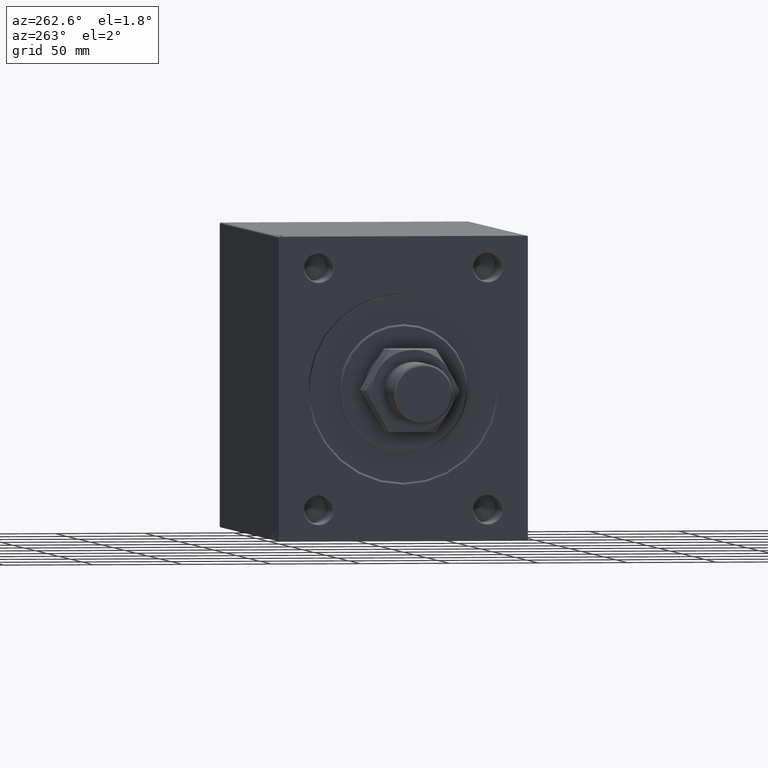
[diagram: clean part render]
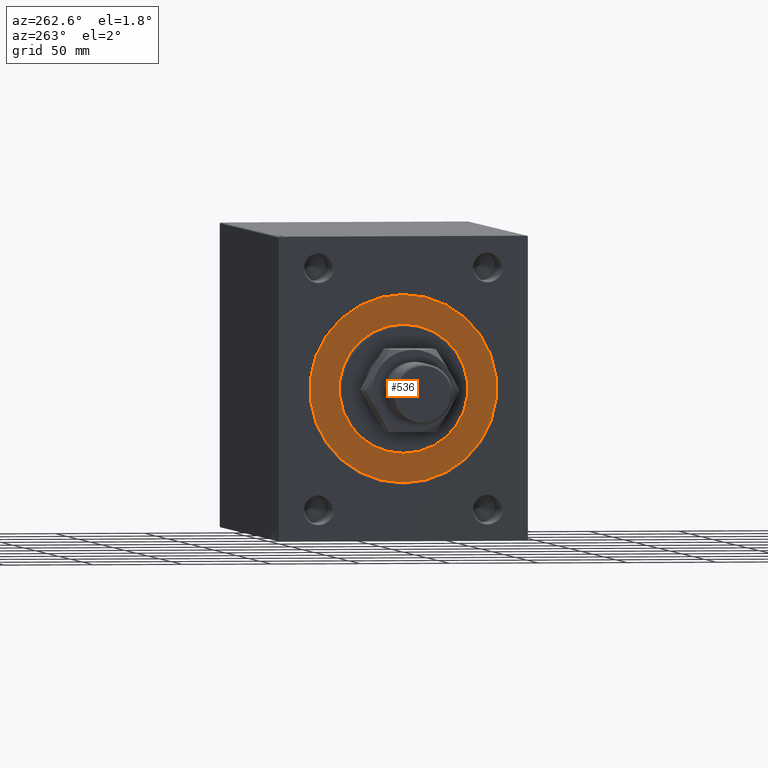
[diagram: same view with one face highlighted and labeled with its STEP entity id]
A machine part, auxiliary view. The second image highlights one B-rep face of the part: STEP entity #536.
In plain terms, the highlighted planar face has unit normal (1, -0, -0).
Its self-contained STEP definition (entity closure, byte-faithful):
#374 = FACE_OUTER_BOUND ( 'NONE', #35372, .T. ) ;
#536 = ADVANCED_FACE ( 'NONE', ( #22154, #374 ), #7791, .F. ) ;
#956 = VERTEX_POINT ( 'NONE', #14636 ) ;
#1495 = CIRCLE ( 'NONE', #5954, 36.00000000000000000 ) ;
#5841 = ORIENTED_EDGE ( 'NONE', *, *, #35809, .F. ) ;
#5954 = AXIS2_PLACEMENT_3D ( 'NONE', #22723, #36853, #37530 ) ;
#6732 = CARTESIAN_POINT ( 'NONE',  ( 0.000000000000000000, 4.408728476930470856E-15, -36.00000000000000000 ) ) ;
#7012 = CARTESIAN_POINT ( 'NONE',  ( 0.000000000000000000, 0.000000000000000000, 0.000000000000000000 ) ) ;
#7201 = DIRECTION ( 'NONE',  ( 0.000000000000000000, 0.000000000000000000, 1.000000000000000000 ) ) ;
#7791 = PLANE ( 'NONE',  #8914 ) ;
#8914 = AXIS2_PLACEMENT_3D ( 'NONE', #18672, #29345, #39082 ) ;
#11764 = EDGE_LOOP ( 'NONE', ( #5841, #12430 ) ) ;
#12430 = ORIENTED_EDGE ( 'NONE', *, *, #21933, .F. ) ;
#13802 = CIRCLE ( 'NONE', #26421, 52.49999999999999289 ) ;
#14243 = EDGE_CURVE ( 'NONE', #956, #25986, #43966, .T. ) ;
#14636 = CARTESIAN_POINT ( 'NONE',  ( 0.000000000000000000, 0.000000000000000000, -52.49999999999999289 ) ) ;
#14978 = VERTEX_POINT ( 'NONE', #31699 ) ;
#15309 = CIRCLE ( 'NONE', #21223, 36.00000000000000000 ) ;
#17094 = CARTESIAN_POINT ( 'NONE',  ( 0.000000000000000000, 0.000000000000000000, 0.000000000000000000 ) ) ;
#18672 = CARTESIAN_POINT ( 'NONE',  ( 0.000000000000000000, 0.000000000000000000, 0.000000000000000000 ) ) ;
#21223 = AXIS2_PLACEMENT_3D ( 'NONE', #17094, #31242, #45395 ) ;
#21571 = EDGE_CURVE ( 'NONE', #25986, #956, #13802, .T. ) ;
#21933 = EDGE_CURVE ( 'NONE', #32752, #14978, #15309, .T. ) ;
#22154 = FACE_BOUND ( 'NONE', #11764, .T. ) ;
#22723 = CARTESIAN_POINT ( 'NONE',  ( 0.000000000000000000, 0.000000000000000000, 0.000000000000000000 ) ) ;
#24233 = CARTESIAN_POINT ( 'NONE',  ( 0.000000000000000000, 6.429395695523603167E-15, 52.49999999999999289 ) ) ;
#25986 = VERTEX_POINT ( 'NONE', #24233 ) ;
#26421 = AXIS2_PLACEMENT_3D ( 'NONE', #28068, #42880, #7201 ) ;
#27657 = DIRECTION ( 'NONE',  ( -1.000000000000000000, 0.000000000000000000, 0.000000000000000000 ) ) ;
#28068 = CARTESIAN_POINT ( 'NONE',  ( 0.000000000000000000, 0.000000000000000000, 0.000000000000000000 ) ) ;
#29345 = DIRECTION ( 'NONE',  ( -1.000000000000000000, 0.000000000000000000, 0.000000000000000000 ) ) ;
#31242 = DIRECTION ( 'NONE',  ( 1.000000000000000000, -0.000000000000000000, 0.000000000000000000 ) ) ;
#31473 = ORIENTED_EDGE ( 'NONE', *, *, #21571, .F. ) ;
#31699 = CARTESIAN_POINT ( 'NONE',  ( 0.000000000000000000, 0.000000000000000000, 36.00000000000000000 ) ) ;
#32752 = VERTEX_POINT ( 'NONE', #6732 ) ;
#35274 = DIRECTION ( 'NONE',  ( 0.000000000000000000, 0.000000000000000000, 1.000000000000000000 ) ) ;
#35372 = EDGE_LOOP ( 'NONE', ( #43753, #31473 ) ) ;
#35809 = EDGE_CURVE ( 'NONE', #14978, #32752, #1495, .T. ) ;
#36853 = DIRECTION ( 'NONE',  ( 1.000000000000000000, -0.000000000000000000, 0.000000000000000000 ) ) ;
#37530 = DIRECTION ( 'NONE',  ( 0.000000000000000000, 0.000000000000000000, -1.000000000000000000 ) ) ;
#39082 = DIRECTION ( 'NONE',  ( 0.000000000000000000, 0.000000000000000000, 1.000000000000000000 ) ) ;
#42880 = DIRECTION ( 'NONE',  ( -1.000000000000000000, 0.000000000000000000, 0.000000000000000000 ) ) ;
#43234 = AXIS2_PLACEMENT_3D ( 'NONE', #7012, #27657, #35274 ) ;
#43753 = ORIENTED_EDGE ( 'NONE', *, *, #14243, .F. ) ;
#43966 = CIRCLE ( 'NONE', #43234, 52.49999999999999289 ) ;
#45395 = DIRECTION ( 'NONE',  ( 0.000000000000000000, 0.000000000000000000, -1.000000000000000000 ) ) ;